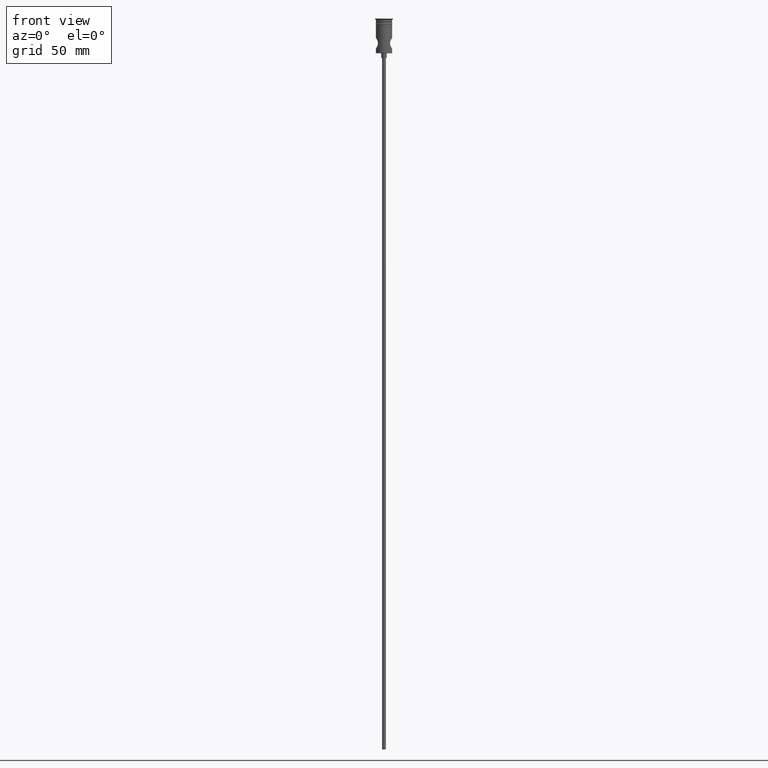
[diagram: clean part render]
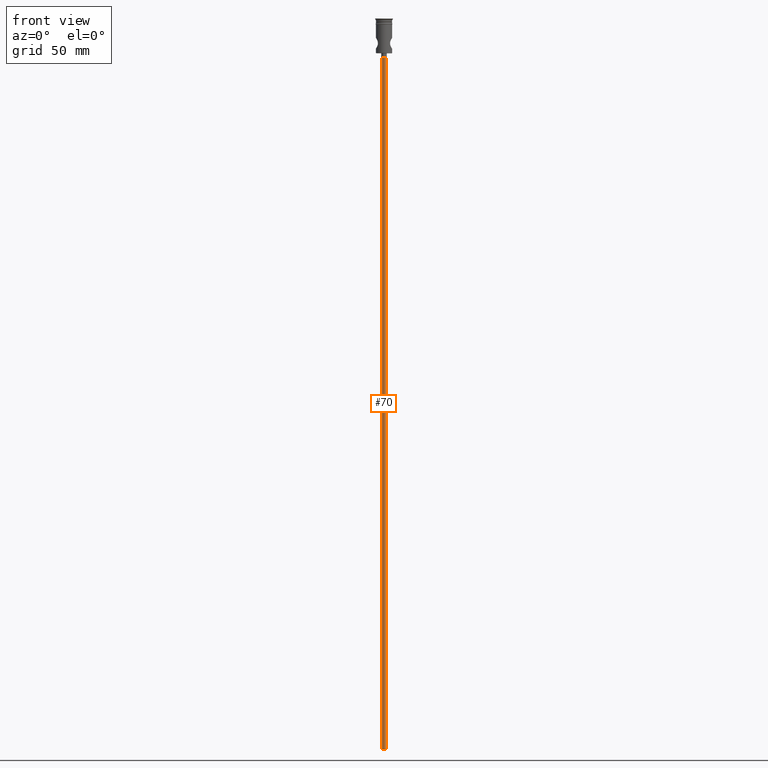
[diagram: same view with one face highlighted and labeled with its STEP entity id]
A machine part, front view. The second image highlights one B-rep face of the part: STEP entity #70.
In plain terms, the highlighted cylindrical surface (edge-blend (fillet) strip) has radius 1.25 mm, axis along (-0, -0, 1).
Its self-contained STEP definition (entity closure, byte-faithful):
#7 = EDGE_LOOP ( 'NONE', ( #1326, #211, #265, #731 ) ) ;
#55 = CIRCLE ( 'NONE', #906, 1.250000000000000000 ) ;
#70 = ADVANCED_FACE ( 'NONE', ( #636 ), #388, .T. ) ;
#89 = EDGE_CURVE ( 'NONE', #740, #722, #170, .T. ) ;
#107 = VECTOR ( 'NONE', #552, 1000.000000000000000 ) ;
#170 = LINE ( 'NONE', #894, #1373 ) ;
#208 = VERTEX_POINT ( 'NONE', #796 ) ;
#211 = ORIENTED_EDGE ( 'NONE', *, *, #838, .F. ) ;
#220 = DIRECTION ( 'NONE',  ( -0.000000000000000000, -0.000000000000000000, 1.000000000000000000 ) ) ;
#236 = EDGE_CURVE ( 'NONE', #208, #1167, #416, .T. ) ;
#265 = ORIENTED_EDGE ( 'NONE', *, *, #89, .T. ) ;
#312 = AXIS2_PLACEMENT_3D ( 'NONE', #440, #1209, #424 ) ;
#317 = DIRECTION ( 'NONE',  ( -1.000000000000000000, 0.000000000000000000, 0.000000000000000000 ) ) ;
#388 = CYLINDRICAL_SURFACE ( 'NONE', #807, 1.250000000000000000 ) ;
#416 = LINE ( 'NONE', #1108, #107 ) ;
#424 = DIRECTION ( 'NONE',  ( -1.000000000000000000, 0.000000000000000000, 0.000000000000000000 ) ) ;
#440 = CARTESIAN_POINT ( 'NONE',  ( 0.000000000000000000, 0.000000000000000000, -472.5000000000000568 ) ) ;
#552 = DIRECTION ( 'NONE',  ( -0.000000000000000000, -0.000000000000000000, 1.000000000000000000 ) ) ;
#611 = EDGE_CURVE ( 'NONE', #722, #1167, #55, .T. ) ;
#631 = CARTESIAN_POINT ( 'NONE',  ( -1.250000000000000000, 1.530808498934191571E-16, -25.50000000000000000 ) ) ;
#636 = FACE_OUTER_BOUND ( 'NONE', #7, .T. ) ;
#722 = VERTEX_POINT ( 'NONE', #1347 ) ;
#731 = ORIENTED_EDGE ( 'NONE', *, *, #611, .T. ) ;
#740 = VERTEX_POINT ( 'NONE', #1418 ) ;
#784 = CARTESIAN_POINT ( 'NONE',  ( 0.000000000000000000, 0.000000000000000000, -25.50000000000000000 ) ) ;
#796 = CARTESIAN_POINT ( 'NONE',  ( -1.250000000000000000, 1.530808498934191571E-16, -472.5000000000000568 ) ) ;
#807 = AXIS2_PLACEMENT_3D ( 'NONE', #837, #1087, #1270 ) ;
#837 = CARTESIAN_POINT ( 'NONE',  ( 0.000000000000000000, 0.000000000000000000, -472.5000000000000568 ) ) ;
#838 = EDGE_CURVE ( 'NONE', #740, #208, #1278, .T. ) ;
#894 = CARTESIAN_POINT ( 'NONE',  ( 1.250000000000000000, 0.000000000000000000, -472.5000000000000568 ) ) ;
#906 = AXIS2_PLACEMENT_3D ( 'NONE', #784, #1438, #317 ) ;
#1087 = DIRECTION ( 'NONE',  ( -0.000000000000000000, -0.000000000000000000, 1.000000000000000000 ) ) ;
#1108 = CARTESIAN_POINT ( 'NONE',  ( -1.250000000000000000, 1.530808498934191571E-16, -472.5000000000000568 ) ) ;
#1167 = VERTEX_POINT ( 'NONE', #631 ) ;
#1209 = DIRECTION ( 'NONE',  ( 0.000000000000000000, 0.000000000000000000, -1.000000000000000000 ) ) ;
#1270 = DIRECTION ( 'NONE',  ( 1.000000000000000000, 0.000000000000000000, 0.000000000000000000 ) ) ;
#1278 = CIRCLE ( 'NONE', #312, 1.250000000000000000 ) ;
#1326 = ORIENTED_EDGE ( 'NONE', *, *, #236, .F. ) ;
#1347 = CARTESIAN_POINT ( 'NONE',  ( 1.250000000000000000, 0.000000000000000000, -25.50000000000000000 ) ) ;
#1373 = VECTOR ( 'NONE', #220, 1000.000000000000000 ) ;
#1418 = CARTESIAN_POINT ( 'NONE',  ( 1.250000000000000000, 0.000000000000000000, -472.5000000000000568 ) ) ;
#1438 = DIRECTION ( 'NONE',  ( 0.000000000000000000, 0.000000000000000000, -1.000000000000000000 ) ) ;